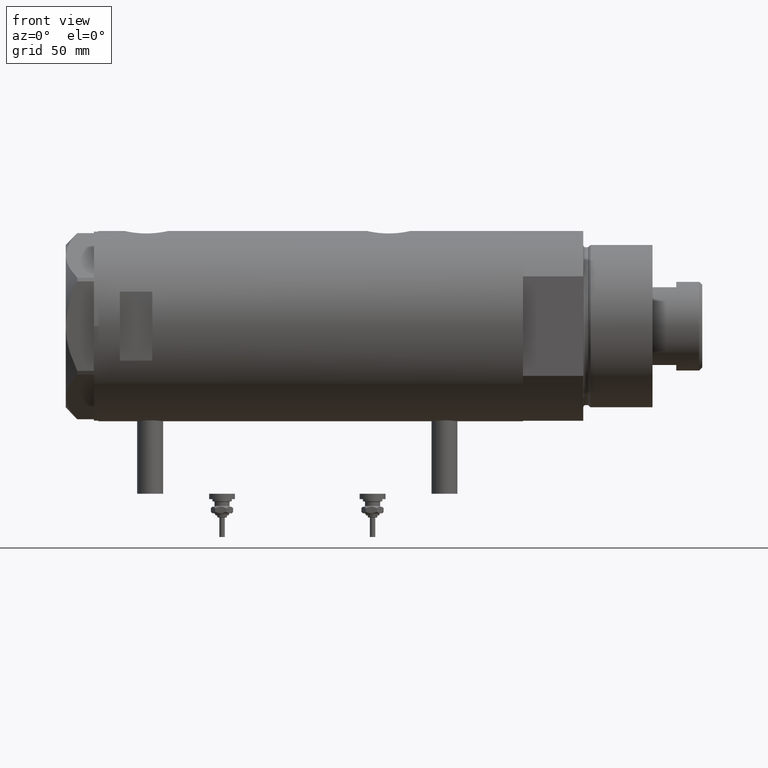
[diagram: clean part render]
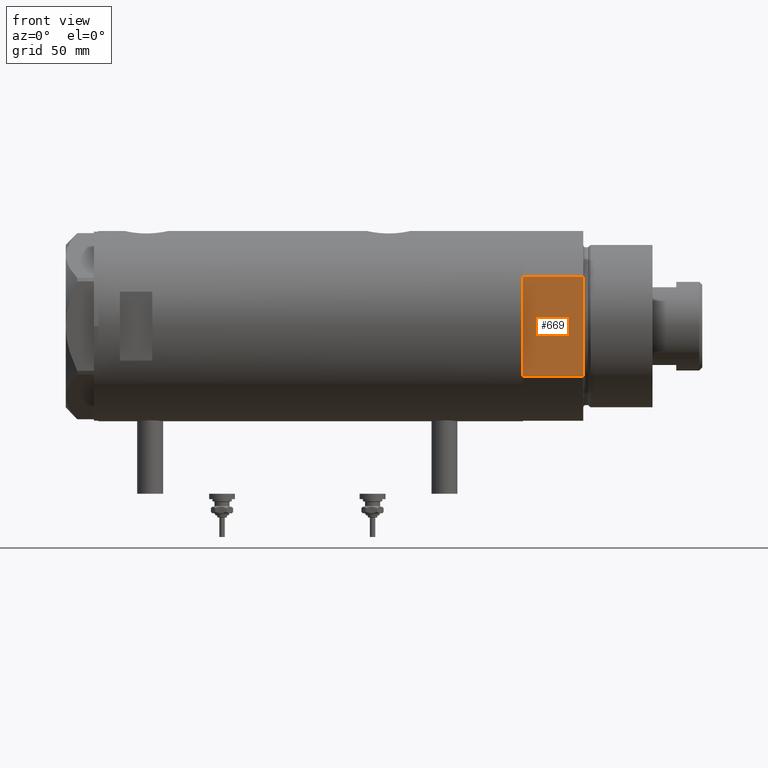
[diagram: same view with one face highlighted and labeled with its STEP entity id]
A machine part, front view. The second image highlights one B-rep face of the part: STEP entity #669.
In plain terms, the highlighted planar face has unit normal (-0, 1, 0).
Its self-contained STEP definition (entity closure, byte-faithful):
#20 = DIRECTION ( 'NONE',  ( -0.000000000000000000, 1.000000000000000000, 0.000000000000000000 ) ) ;
#331 = LINE ( 'NONE', #2179, #2728 ) ;
#478 = EDGE_CURVE ( 'NONE', #2614, #2510, #331, .T. ) ;
#517 = CARTESIAN_POINT ( 'NONE',  ( -23.01629857296780557, -37.50000000000000000, 0.000000000000000000 ) ) ;
#549 = ORIENTED_EDGE ( 'NONE', *, *, #5130, .T. ) ;
#583 = CARTESIAN_POINT ( 'NONE',  ( -23.01629857296780557, -37.50000000000000000, 27.89999999999999858 ) ) ;
#598 = CARTESIAN_POINT ( 'NONE',  ( 0.000000000000000000, -37.50000000000000000, 27.89999999999999858 ) ) ;
#669 = ADVANCED_FACE ( 'NONE', ( #955 ), #3255, .F. ) ;
#691 = VECTOR ( 'NONE', #1592, 1000.000000000000000 ) ;
#870 = CARTESIAN_POINT ( 'NONE',  ( -23.01629857296780557, -37.50000000000000000, 0.000000000000000000 ) ) ;
#955 = FACE_OUTER_BOUND ( 'NONE', #3858, .T. ) ;
#963 = VERTEX_POINT ( 'NONE', #5971 ) ;
#1053 = DIRECTION ( 'NONE',  ( -1.000000000000000000, -0.000000000000000000, -0.000000000000000000 ) ) ;
#1076 = ORIENTED_EDGE ( 'NONE', *, *, #478, .F. ) ;
#1166 = ORIENTED_EDGE ( 'NONE', *, *, #4977, .F. ) ;
#1213 = VERTEX_POINT ( 'NONE', #3007 ) ;
#1272 = VECTOR ( 'NONE', #2434, 1000.000000000000000 ) ;
#1482 = EDGE_CURVE ( 'NONE', #4817, #2510, #4346, .T. ) ;
#1592 = DIRECTION ( 'NONE',  ( -1.000000000000000000, -0.000000000000000000, -0.000000000000000000 ) ) ;
#1630 = ORIENTED_EDGE ( 'NONE', *, *, #2381, .T. ) ;
#1665 = DIRECTION ( 'NONE',  ( -0.000000000000000000, -0.000000000000000000, 1.000000000000000000 ) ) ;
#2040 = CARTESIAN_POINT ( 'NONE',  ( 13.91941090707505957, -37.50000000000000000, 0.000000000000000000 ) ) ;
#2179 = CARTESIAN_POINT ( 'NONE',  ( -23.01629857296780557, -37.50000000000000000, 0.000000000000000000 ) ) ;
#2194 = ORIENTED_EDGE ( 'NONE', *, *, #4165, .F. ) ;
#2249 = CARTESIAN_POINT ( 'NONE',  ( -23.01629857296780557, -37.50000000000000000, 27.89999999999999858 ) ) ;
#2345 = CARTESIAN_POINT ( 'NONE',  ( -23.01629857296780557, -37.50000000000000000, 0.000000000000000000 ) ) ;
#2381 = EDGE_CURVE ( 'NONE', #1213, #4817, #4857, .T. ) ;
#2434 = DIRECTION ( 'NONE',  ( -1.000000000000000000, -0.000000000000000000, -0.000000000000000000 ) ) ;
#2510 = VERTEX_POINT ( 'NONE', #2249 ) ;
#2614 = VERTEX_POINT ( 'NONE', #2345 ) ;
#2728 = VECTOR ( 'NONE', #1665, 1000.000000000000000 ) ;
#2770 = CARTESIAN_POINT ( 'NONE',  ( -23.01629857296780557, -37.50000000000000000, 0.000000000000000000 ) ) ;
#2790 = VERTEX_POINT ( 'NONE', #4455 ) ;
#2878 = DIRECTION ( 'NONE',  ( -1.000000000000000000, -0.000000000000000000, -0.000000000000000000 ) ) ;
#2961 = ORIENTED_EDGE ( 'NONE', *, *, #5094, .F. ) ;
#3007 = CARTESIAN_POINT ( 'NONE',  ( 23.01629857296780557, -37.50000000000000000, 27.89999999999999858 ) ) ;
#3255 = PLANE ( 'NONE',  #5058 ) ;
#3504 = VECTOR ( 'NONE', #2878, 1000.000000000000000 ) ;
#3660 = DIRECTION ( 'NONE',  ( -1.000000000000000000, -0.000000000000000000, -0.000000000000000000 ) ) ;
#3858 = EDGE_LOOP ( 'NONE', ( #1630, #4097, #1076, #1166, #2961, #2194, #549 ) ) ;
#4097 = ORIENTED_EDGE ( 'NONE', *, *, #1482, .T. ) ;
#4098 = VECTOR ( 'NONE', #1053, 1000.000000000000000 ) ;
#4165 = EDGE_CURVE ( 'NONE', #963, #4473, #4693, .T. ) ;
#4222 = LINE ( 'NONE', #517, #4098 ) ;
#4346 = LINE ( 'NONE', #583, #1272 ) ;
#4455 = CARTESIAN_POINT ( 'NONE',  ( -13.91941090707505957, -37.50000000000000000, 0.000000000000000000 ) ) ;
#4473 = VERTEX_POINT ( 'NONE', #2040 ) ;
#4679 = VECTOR ( 'NONE', #3660, 1000.000000000000000 ) ;
#4693 = LINE ( 'NONE', #5250, #3504 ) ;
#4697 = LINE ( 'NONE', #5135, #5476 ) ;
#4817 = VERTEX_POINT ( 'NONE', #598 ) ;
#4857 = LINE ( 'NONE', #5329, #691 ) ;
#4977 = EDGE_CURVE ( 'NONE', #2790, #2614, #5568, .T. ) ;
#5058 = AXIS2_PLACEMENT_3D ( 'NONE', #870, #20, #5122 ) ;
#5094 = EDGE_CURVE ( 'NONE', #4473, #2790, #4222, .T. ) ;
#5122 = DIRECTION ( 'NONE',  ( 0.000000000000000000, -0.000000000000000000, 1.000000000000000000 ) ) ;
#5130 = EDGE_CURVE ( 'NONE', #963, #1213, #4697, .T. ) ;
#5135 = CARTESIAN_POINT ( 'NONE',  ( 23.01629857296780557, -37.50000000000000000, 0.000000000000000000 ) ) ;
#5250 = CARTESIAN_POINT ( 'NONE',  ( -23.01629857296780557, -37.50000000000000000, 0.000000000000000000 ) ) ;
#5329 = CARTESIAN_POINT ( 'NONE',  ( -23.01629857296780557, -37.50000000000000000, 27.89999999999999858 ) ) ;
#5476 = VECTOR ( 'NONE', #5710, 1000.000000000000000 ) ;
#5568 = LINE ( 'NONE', #2770, #4679 ) ;
#5710 = DIRECTION ( 'NONE',  ( -0.000000000000000000, -0.000000000000000000, 1.000000000000000000 ) ) ;
#5971 = CARTESIAN_POINT ( 'NONE',  ( 23.01629857296780557, -37.50000000000000000, 0.000000000000000000 ) ) ;